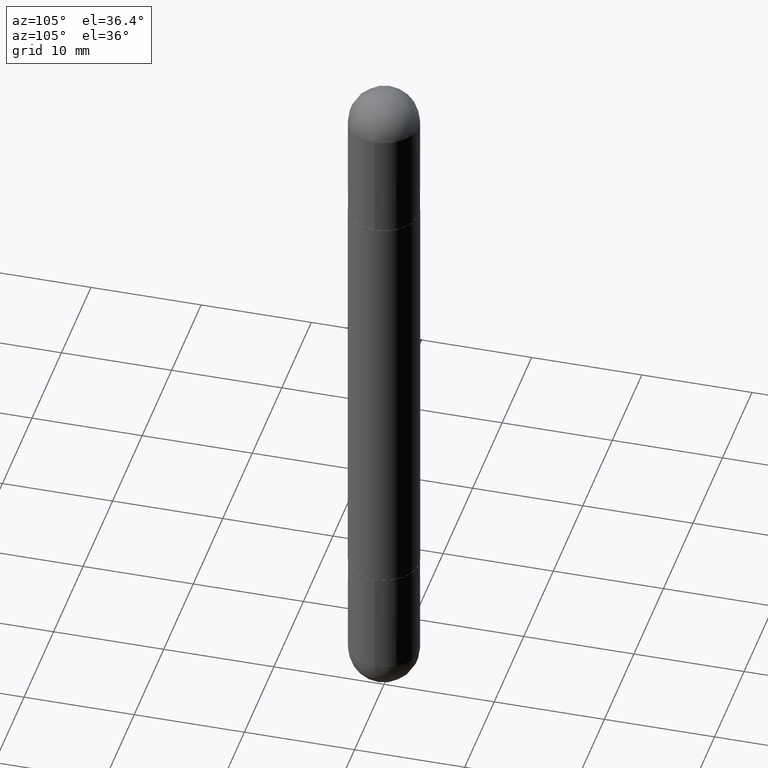
[diagram: clean part render]
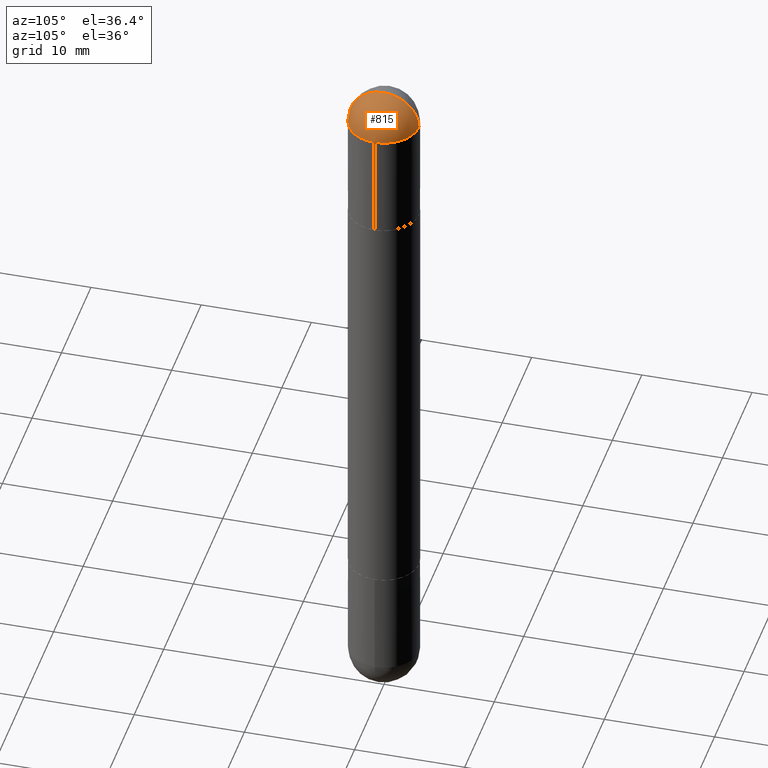
[diagram: same view with one face highlighted and labeled with its STEP entity id]
A machine part, auxiliary view. The second image highlights one B-rep face of the part: STEP entity #815.
In plain terms, the highlighted spherical surface has radius 3.175 mm.
Its self-contained STEP definition (entity closure, byte-faithful):
#5 = DIRECTION ( 'NONE',  ( 1.000000000000000000, -6.982962677686265922E-15, -4.883557194083112901E-29 ) ) ;
#18 = CARTESIAN_POINT ( 'NONE',  ( 8.728703347108403340E-16, 0.1249999999999915623, -0.1250000000000000000 ) ) ;
#43 = DIRECTION ( 'NONE',  ( 2.445468806185136597E-29, -3.491481338843145583E-15, 1.000000000000000000 ) ) ;
#114 = CIRCLE ( 'NONE', #224, 0.1250000000000001943 ) ;
#127 = VERTEX_POINT ( 'NONE', #655 ) ;
#137 = CIRCLE ( 'NONE', #461, 0.1250000000000001943 ) ;
#139 = CIRCLE ( 'NONE', #555, 0.1250000000000000000 ) ;
#183 = DIRECTION ( 'NONE',  ( -6.982962677686265133E-15, -1.000000000000000000, 0.000000000000000000 ) ) ;
#224 = AXIS2_PLACEMENT_3D ( 'NONE', #747, #295, #183 ) ;
#257 = DIRECTION ( 'NONE',  ( 1.000000000000000000, -6.982962677686270655E-15, 0.000000000000000000 ) ) ;
#264 = VERTEX_POINT ( 'NONE', #18 ) ;
#293 = DIRECTION ( 'NONE',  ( 1.000000000000000000, -6.982962677686270655E-15, 0.000000000000000000 ) ) ;
#295 = DIRECTION ( 'NONE',  ( -1.000000000000000000, 6.982962677686265922E-15, 4.883557194083112340E-29 ) ) ;
#300 = DIRECTION ( 'NONE',  ( 6.860497997771529196E-15, 1.000000000000000000, 0.000000000000000000 ) ) ;
#332 = AXIS2_PLACEMENT_3D ( 'NONE', #603, #43, #257 ) ;
#333 = CARTESIAN_POINT ( 'NONE',  ( 5.807988414689700538E-29, -8.292268179752471696E-15, -0.1250000000000004441 ) ) ;
#382 = EDGE_CURVE ( 'NONE', #127, #264, #139, .T. ) ;
#421 = DIRECTION ( 'NONE',  ( 1.000000000000000000, -6.860497997771530774E-15, -4.840798879624142912E-29 ) ) ;
#443 = FACE_OUTER_BOUND ( 'NONE', #768, .T. ) ;
#461 = AXIS2_PLACEMENT_3D ( 'NONE', #612, #421, #300 ) ;
#469 = CARTESIAN_POINT ( 'NONE',  ( 5.787897026856327965E-29, -9.195231672753244292E-15, -2.561107494060246644E-16 ) ) ;
#503 = ORIENTED_EDGE ( 'NONE', *, *, #569, .F. ) ;
#553 = VERTEX_POINT ( 'NONE', #804 ) ;
#555 = AXIS2_PLACEMENT_3D ( 'NONE', #333, #654, #293 ) ;
#562 = SPHERICAL_SURFACE ( 'NONE', #811, 0.1250000000000001943 ) ;
#569 = EDGE_CURVE ( 'NONE', #744, #264, #114, .T. ) ;
#578 = ORIENTED_EDGE ( 'NONE', *, *, #765, .T. ) ;
#582 = ORIENTED_EDGE ( 'NONE', *, *, #382, .T. ) ;
#603 = CARTESIAN_POINT ( 'NONE',  ( 5.807988414689700538E-29, -8.292268179752471696E-15, -0.1250000000000004441 ) ) ;
#612 = CARTESIAN_POINT ( 'NONE',  ( 5.476868636775814291E-29, -8.766450547892521992E-15, -0.1250000000000004441 ) ) ;
#620 = CIRCLE ( 'NONE', #332, 0.1250000000000000000 ) ;
#627 = EDGE_CURVE ( 'NONE', #744, #553, #137, .T. ) ;
#653 = ORIENTED_EDGE ( 'NONE', *, *, #627, .T. ) ;
#654 = DIRECTION ( 'NONE',  ( 2.445468806185136597E-29, -3.491481338843145583E-15, 1.000000000000000000 ) ) ;
#655 = CARTESIAN_POINT ( 'NONE',  ( 0.1250000000000000000, -8.510485763430165164E-15, -0.1250000000000004441 ) ) ;
#691 = CARTESIAN_POINT ( 'NONE',  ( 5.476868636775814291E-29, -8.766450547892521992E-15, -0.1250000000000004441 ) ) ;
#744 = VERTEX_POINT ( 'NONE', #469 ) ;
#747 = CARTESIAN_POINT ( 'NONE',  ( 5.476868636775814291E-29, -8.766450547892521992E-15, -0.1250000000000004441 ) ) ;
#765 = EDGE_CURVE ( 'NONE', #553, #127, #620, .T. ) ;
#768 = EDGE_LOOP ( 'NONE', ( #503, #653, #578, #582 ) ) ;
#804 = CARTESIAN_POINT ( 'NONE',  ( -8.575622497213856334E-16, -0.1250000000000086320, -0.1250000000000008882 ) ) ;
#811 = AXIS2_PLACEMENT_3D ( 'NONE', #691, #5, #813 ) ;
#813 = DIRECTION ( 'NONE',  ( 6.982962677686265922E-15, 1.000000000000000000, 3.551402391763536859E-15 ) ) ;
#815 = ADVANCED_FACE ( 'NONE', ( #443 ), #562, .T. ) ;